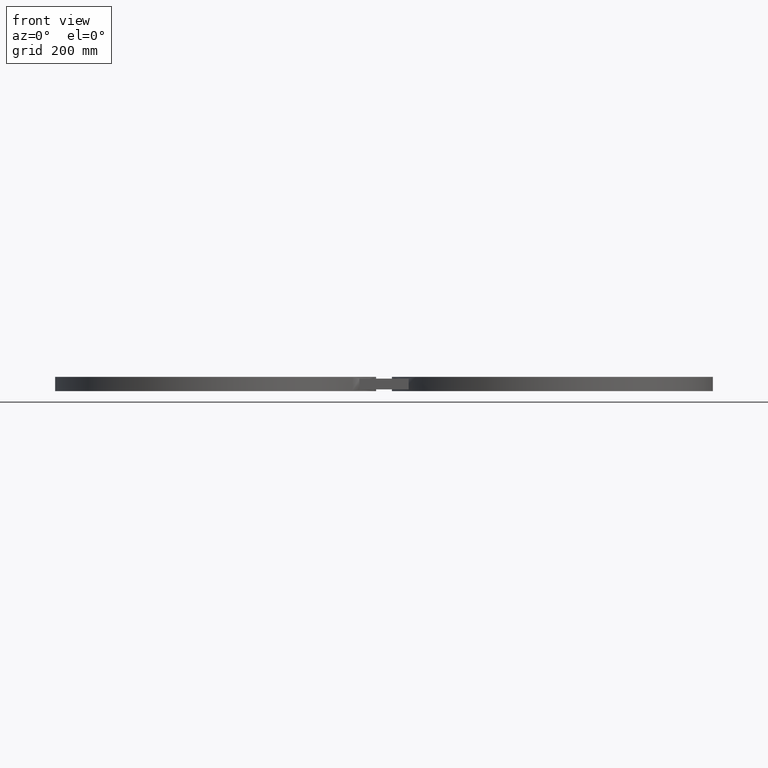
[diagram: clean part render]
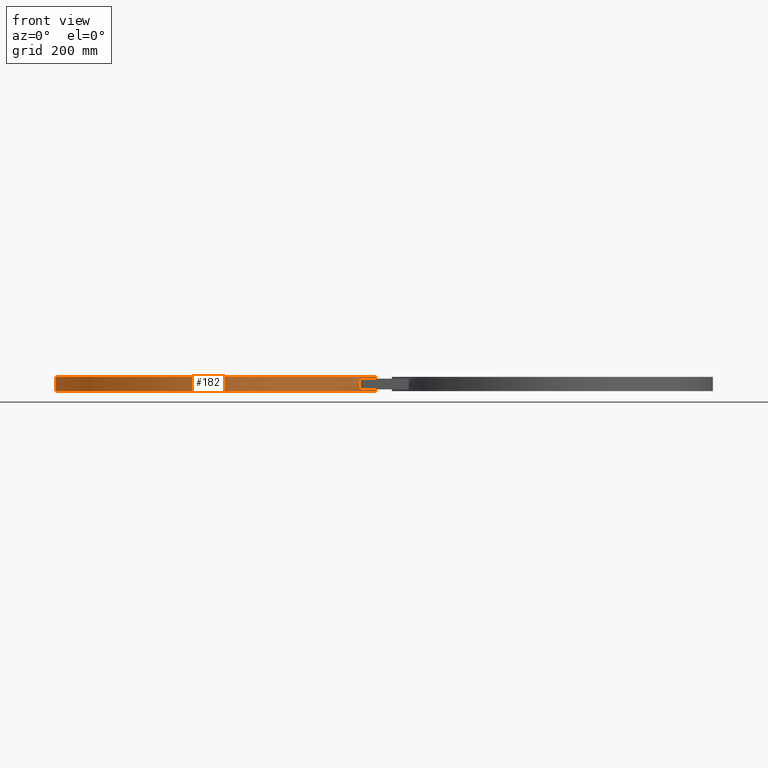
[diagram: same view with one face highlighted and labeled with its STEP entity id]
A machine part, front view. The second image highlights one B-rep face of the part: STEP entity #182.
In plain terms, the highlighted cylindrical surface (partial cylindrical patch) has radius 357.124 mm, axis along (0, 0, 1).
Its self-contained STEP definition (entity closure, byte-faithful):
#112=AXIS2_PLACEMENT_3D('Cylinder Axis2P3D',#109,#110,#111) ;
#125=AXIS2_PLACEMENT_3D('Circle Axis2P3D',#123,#124,$) ;
#139=AXIS2_PLACEMENT_3D('Circle Axis2P3D',#137,#138,$) ;
#159=AXIS2_PLACEMENT_3D('Circle Axis2P3D',#157,#158,$) ;
#173=AXIS2_PLACEMENT_3D('Circle Axis2P3D',#171,#172,$) ;
#109=CARTESIAN_POINT('Axis2P3D Location',(0.,0.,-1.39870617276E-016)) ;
#114=CARTESIAN_POINT('Line Origine',(-14.0600000001,1.72185339961E-015,-1.39870617276E-016)) ;
#118=CARTESIAN_POINT('Vertex',(-14.0600000001,1.72185339961E-015,-0.625000000003)) ;
#120=CARTESIAN_POINT('Vertex',(-14.0600000001,1.72185339961E-015,0.625000000002)) ;
#123=CARTESIAN_POINT('Axis2P3D Location',(0.,0.,-0.625000000003)) ;
#127=CARTESIAN_POINT('Vertex',(14.0600000001,0.,-0.625000000003)) ;
#130=CARTESIAN_POINT('Line Origine',(14.0600000001,-3.44370679922E-015,-1.39870617276E-016)) ;
#134=CARTESIAN_POINT('Vertex',(14.0600000001,0.,0.625000000002)) ;
#137=CARTESIAN_POINT('Axis2P3D Location',(0.,0.,0.625000000002)) ;
#148=CARTESIAN_POINT('Line Origine',(14.0399821938,-0.750000000003,-1.39870617276E-016)) ;
#152=CARTESIAN_POINT('Vertex',(14.0399821938,-0.750000000003,-0.468750000002)) ;
#154=CARTESIAN_POINT('Vertex',(14.0399821938,-0.750000000003,0.468750000002)) ;
#157=CARTESIAN_POINT('Axis2P3D Location',(0.,0.,-0.468750000002)) ;
#161=CARTESIAN_POINT('Vertex',(12.5944868892,-6.25000000003,-0.468750000002)) ;
#164=CARTESIAN_POINT('Line Origine',(12.5944868892,-6.25000000002,-1.39870617276E-016)) ;
#168=CARTESIAN_POINT('Vertex',(12.5944868892,-6.25000000003,0.468750000002)) ;
#171=CARTESIAN_POINT('Axis2P3D Location',(0.,0.,0.468750000002)) ;
#110=DIRECTION('Axis2P3D Direction',(0.,0.,0.0393700787402)) ;
#111=DIRECTION('Axis2P3D XDirection',(0.0393700787402,0.,0.)) ;
#115=DIRECTION('Vector Direction',(0.,0.,0.0393700787402)) ;
#124=DIRECTION('Axis2P3D Direction',(0.,0.,0.0393700787402)) ;
#131=DIRECTION('Vector Direction',(0.,0.,0.0393700787402)) ;
#138=DIRECTION('Axis2P3D Direction',(0.,0.,0.0393700787402)) ;
#149=DIRECTION('Vector Direction',(0.,0.,0.0393700787402)) ;
#158=DIRECTION('Axis2P3D Direction',(0.,0.,0.0393700787402)) ;
#165=DIRECTION('Vector Direction',(0.,0.,0.0393700787402)) ;
#172=DIRECTION('Axis2P3D Direction',(0.,0.,0.0393700787402)) ;
#116=VECTOR('Line Direction',#115,0.0393700787402) ;
#132=VECTOR('Line Direction',#131,0.0393700787402) ;
#150=VECTOR('Line Direction',#149,0.0393700787402) ;
#166=VECTOR('Line Direction',#165,0.0393700787402) ;
#143=ORIENTED_EDGE('',*,*,#122,.F.) ;
#144=ORIENTED_EDGE('',*,*,#129,.T.) ;
#145=ORIENTED_EDGE('',*,*,#136,.T.) ;
#146=ORIENTED_EDGE('',*,*,#141,.F.) ;
#177=ORIENTED_EDGE('',*,*,#156,.F.) ;
#178=ORIENTED_EDGE('',*,*,#163,.F.) ;
#179=ORIENTED_EDGE('',*,*,#170,.T.) ;
#180=ORIENTED_EDGE('',*,*,#175,.T.) ;
#181=FACE_BOUND('',#176,.T.) ;
#182=ADVANCED_FACE('PartBody',(#147,#181),#113,.T.) ;
#126=CIRCLE('generated circle',#125,14.0600000001) ;
#140=CIRCLE('generated circle',#139,14.0600000001) ;
#160=CIRCLE('generated circle',#159,14.0600000001) ;
#174=CIRCLE('generated circle',#173,14.0600000001) ;
#113=CYLINDRICAL_SURFACE('generated cylinder',#112,14.0600000001) ;
#122=EDGE_CURVE('',#119,#121,#117,.T.) ;
#129=EDGE_CURVE('',#119,#128,#126,.T.) ;
#136=EDGE_CURVE('',#128,#135,#133,.T.) ;
#141=EDGE_CURVE('',#121,#135,#140,.T.) ;
#156=EDGE_CURVE('',#153,#155,#151,.T.) ;
#163=EDGE_CURVE('',#162,#153,#160,.T.) ;
#170=EDGE_CURVE('',#162,#169,#167,.T.) ;
#175=EDGE_CURVE('',#169,#155,#174,.T.) ;
#142=EDGE_LOOP('',(#143,#144,#145,#146)) ;
#176=EDGE_LOOP('',(#177,#178,#179,#180)) ;
#147=FACE_OUTER_BOUND('',#142,.T.) ;
#117=LINE('Line',#114,#116) ;
#133=LINE('Line',#130,#132) ;
#151=LINE('Line',#148,#150) ;
#167=LINE('Line',#164,#166) ;
#119=VERTEX_POINT('',#118) ;
#121=VERTEX_POINT('',#120) ;
#128=VERTEX_POINT('',#127) ;
#135=VERTEX_POINT('',#134) ;
#153=VERTEX_POINT('',#152) ;
#155=VERTEX_POINT('',#154) ;
#162=VERTEX_POINT('',#161) ;
#169=VERTEX_POINT('',#168) ;